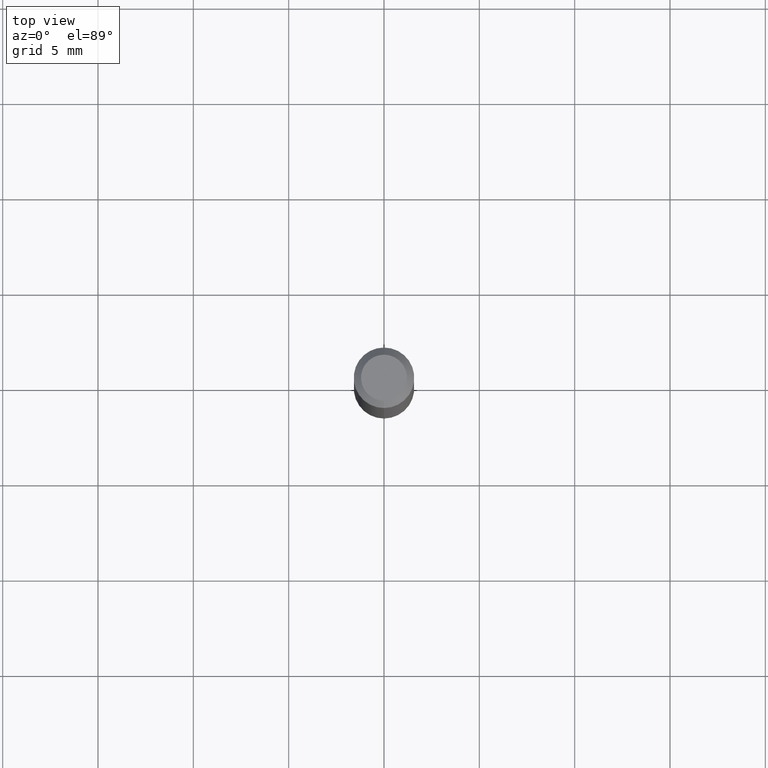
[diagram: clean part render]
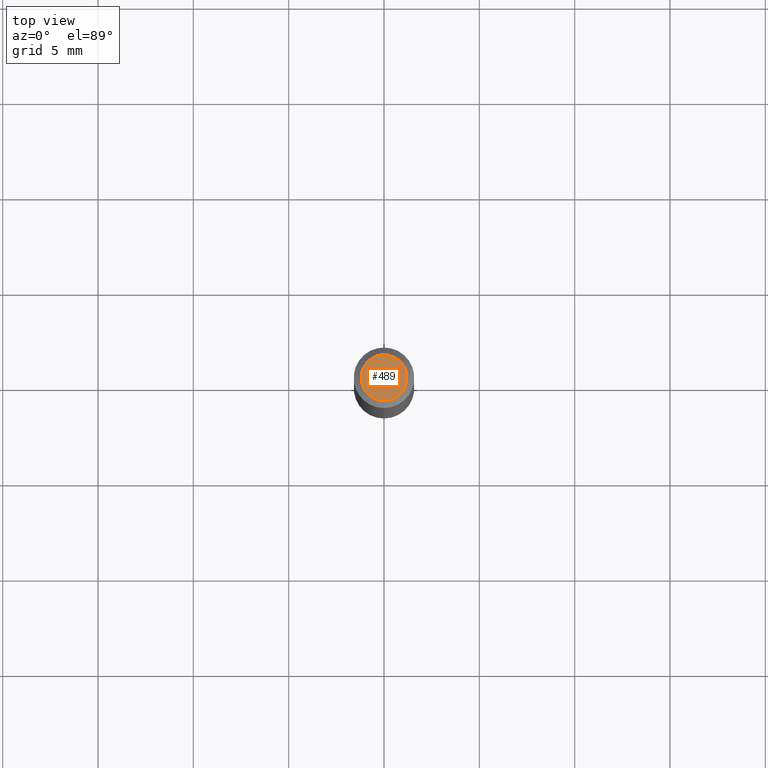
[diagram: same view with one face highlighted and labeled with its STEP entity id]
A machine part, top view. The second image highlights one B-rep face of the part: STEP entity #489.
In plain terms, the highlighted planar face has unit normal (0, -0, -1).
Its self-contained STEP definition (entity closure, byte-faithful):
#1 = DIRECTION ( 'NONE',  ( -2.438888398687161749E-29, 3.500904856913780958E-15, 1.000000000000000000 ) ) ;
#32 = EDGE_LOOP ( 'NONE', ( #77, #128 ) ) ;
#43 = VERTEX_POINT ( 'NONE', #366 ) ;
#46 = CARTESIAN_POINT ( 'NONE',  ( 3.316907271900979054E-16, 0.04750000000000004219, -3.451125341845701985E-16 ) ) ;
#51 = CARTESIAN_POINT ( 'NONE',  ( 8.722418688872659723E-45, -1.252060486586731701E-30, -3.576391069623309378E-16 ) ) ;
#77 = ORIENTED_EDGE ( 'NONE', *, *, #369, .T. ) ;
#81 = AXIS2_PLACEMENT_3D ( 'NONE', #51, #442, #255 ) ;
#84 = VERTEX_POINT ( 'NONE', #295 ) ;
#128 = ORIENTED_EDGE ( 'NONE', *, *, #288, .T. ) ;
#201 = CARTESIAN_POINT ( 'NONE',  ( 8.722418688872659723E-45, -1.252060486586731701E-30, -3.576391069623309378E-16 ) ) ;
#255 = DIRECTION ( 'NONE',  ( -6.982962677686265133E-15, -1.000000000000000000, 3.500904856913780564E-15 ) ) ;
#288 = EDGE_CURVE ( 'NONE', #43, #84, #350, .T. ) ;
#293 = DIRECTION ( 'NONE',  ( 2.438888398687161469E-29, -3.500904856913780958E-15, -1.000000000000000000 ) ) ;
#295 = CARTESIAN_POINT ( 'NONE',  ( 3.840629472727450339E-16, 0.04750000000000004219, -5.239320876657356674E-16 ) ) ;
#308 = AXIS2_PLACEMENT_3D ( 'NONE', #46, #293, #480 ) ;
#350 = CIRCLE ( 'NONE', #379, 0.04750000000000004219 ) ;
#366 = CARTESIAN_POINT ( 'NONE',  ( -3.773273898774342241E-16, -0.04750000000000004219, -1.913461262589262082E-16 ) ) ;
#369 = EDGE_CURVE ( 'NONE', #84, #43, #464, .T. ) ;
#379 = AXIS2_PLACEMENT_3D ( 'NONE', #201, #1, #469 ) ;
#440 = FACE_OUTER_BOUND ( 'NONE', #32, .T. ) ;
#442 = DIRECTION ( 'NONE',  ( -2.438888398687161749E-29, 3.500904856913780958E-15, 1.000000000000000000 ) ) ;
#464 = CIRCLE ( 'NONE', #81, 0.04750000000000004219 ) ;
#469 = DIRECTION ( 'NONE',  ( -6.982962677686265133E-15, -1.000000000000000000, 3.500904856913780564E-15 ) ) ;
#480 = DIRECTION ( 'NONE',  ( 6.982962677686265922E-15, 1.000000000000000000, -3.500904856913780958E-15 ) ) ;
#487 = PLANE ( 'NONE',  #308 ) ;
#489 = ADVANCED_FACE ( 'NONE', ( #440 ), #487, .F. ) ;